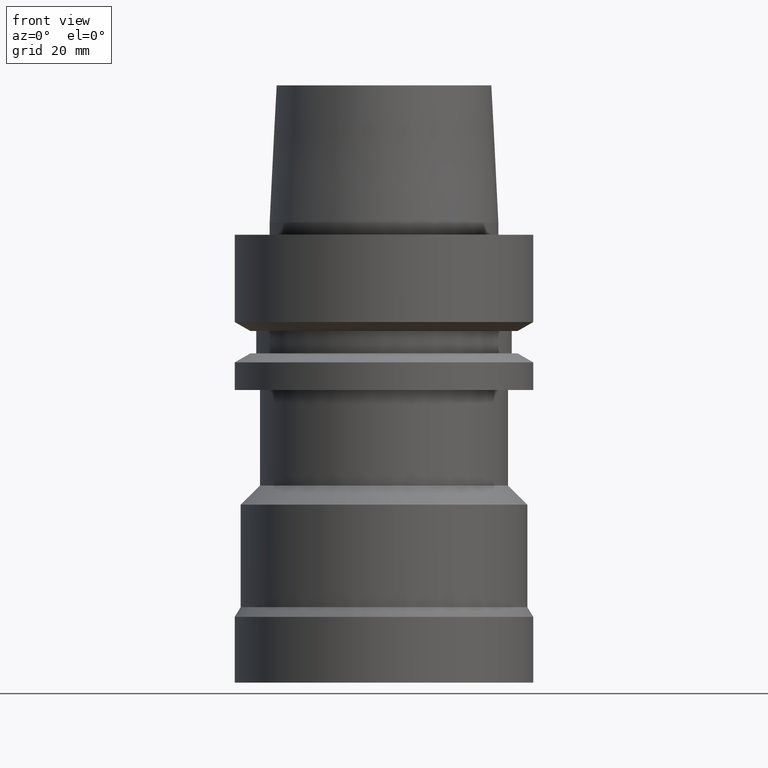
[diagram: clean part render]
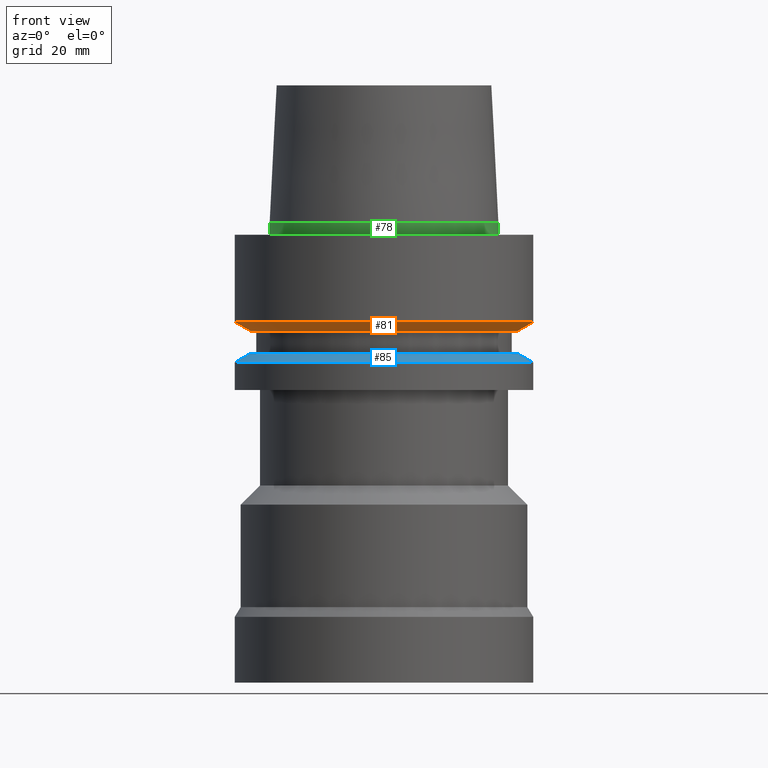
[diagram: same view with three faces highlighted in distinct colors, each labeled with its STEP entity id]
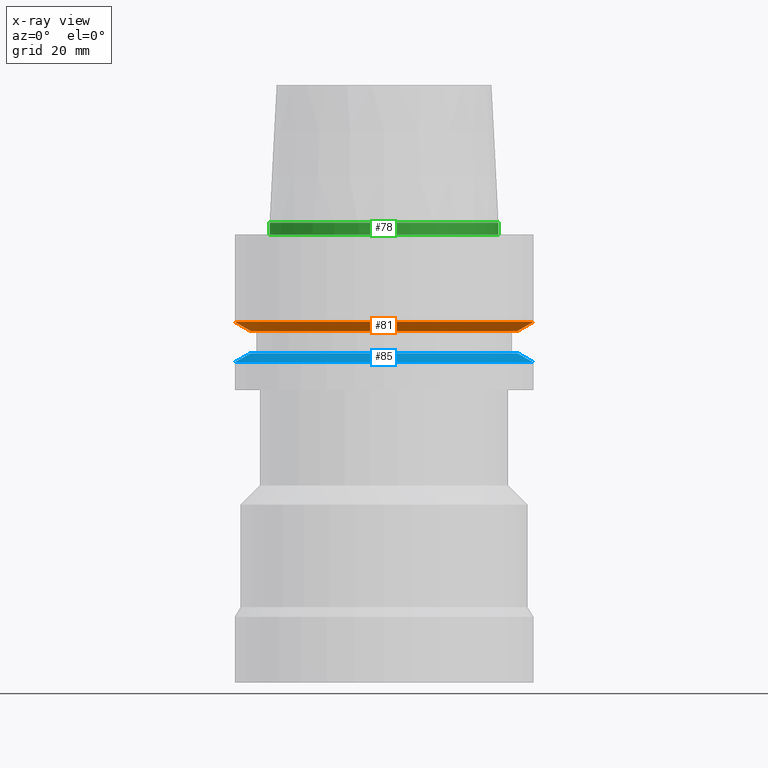
[diagram: x-ray of the same camera — body ghosted, the three highlighted faces saturated]
A machine part, front view with three faces highlighted in distinct colors.
The next image is the same camera in x-ray (body ghosted, the three faces saturated) — at least one of them is partly hidden behind the body in this view.
Their STEP definitions:

[orange] entity #81 — the highlighted conical surface has half-angle 60 deg.
#81=ADVANCED_FACE('',(#110,#111),#112,.T.);
#110=FACE_BOUND('',#162,.T.);
#111=FACE_BOUND('',#163,.T.);
#112=CONICAL_SURFACE('',#164,23.69879763,1.04719755326565);
#162=EDGE_LOOP('',(#226));
#163=EDGE_LOOP('',(#227));
#164=AXIS2_PLACEMENT_3D('',#228,#229,#230);
#226=ORIENTED_EDGE('',*,*,#292,.F.);
#227=ORIENTED_EDGE('',*,*,#291,.T.);
#228=CARTESIAN_POINT('',(9.41370714892619E-016,1.88274142978524E-015,-15.373750465));
#229=DIRECTION('',(-6.12323399573676E-017,-1.22464679914735E-016,1.0));
#230=DIRECTION('',(-1.23259516440783E-032,1.0,1.22464679914735E-016));
#291=EDGE_CURVE('',#313,#313,#314,.T.);
#292=EDGE_CURVE('',#315,#315,#316,.T.);
#313=VERTEX_POINT('',#347);
#314=CIRCLE('',#348,25.0);
#315=VERTEX_POINT('',#349);
#316=CIRCLE('',#350,22.39759526);
#347=CARTESIAN_POINT('',(8.95369947972684E-016,25.0,-14.62250093));
#348=AXIS2_PLACEMENT_3D('',#386,#387,#388);
#349=CARTESIAN_POINT('',(9.87371481812553E-016,22.39759526,-16.125));
#350=AXIS2_PLACEMENT_3D('',#389,#390,#391);
#386=CARTESIAN_POINT('',(8.95369947972685E-016,1.79073989594537E-015,-14.62250093));
#387=DIRECTION('',(6.12323399573677E-017,1.22464679914735E-016,-1.0));
#388=DIRECTION('',(-1.23259516440783E-032,1.0,1.22464679914735E-016));
#389=CARTESIAN_POINT('',(9.87371481812554E-016,1.97474296362511E-015,-16.125));
#390=DIRECTION('',(6.12323399573677E-017,1.22464679914735E-016,-1.0));
#391=DIRECTION('',(-1.23259516440783E-032,1.0,1.22464679914735E-016));

[blue] entity #85 — the highlighted conical surface has half-angle 60 deg.
#85=ADVANCED_FACE('',(#122,#123),#124,.T.);
#122=FACE_BOUND('',#174,.T.);
#123=FACE_BOUND('',#175,.T.);
#124=CONICAL_SURFACE('',#176,23.69879763,1.04719755326565);
#174=EDGE_LOOP('',(#246));
#175=EDGE_LOOP('',(#247));
#176=AXIS2_PLACEMENT_3D('',#248,#249,#250);
#246=ORIENTED_EDGE('',*,*,#296,.F.);
#247=ORIENTED_EDGE('',*,*,#295,.T.);
#248=CARTESIAN_POINT('',(1.26299352357262E-015,2.52598704714523E-015,-20.626249535));
#249=DIRECTION('',(6.12323399573676E-017,1.22464679914735E-016,-1.0));
#250=DIRECTION('',(-1.23259516440783E-032,1.0,1.22464679914735E-016));
#295=EDGE_CURVE('',#321,#321,#322,.T.);
#296=EDGE_CURVE('',#323,#323,#324,.T.);
#321=VERTEX_POINT('',#355);
#322=CIRCLE('',#356,22.39759526);
#323=VERTEX_POINT('',#357);
#324=CIRCLE('',#358,25.0);
#355=CARTESIAN_POINT('',(1.21699275665268E-015,22.39759526,-19.875));
#356=AXIS2_PLACEMENT_3D('',#398,#399,#400);
#357=CARTESIAN_POINT('',(1.30899429049255E-015,25.0,-21.37749907));
#358=AXIS2_PLACEMENT_3D('',#401,#402,#403);
#398=CARTESIAN_POINT('',(1.21699275665268E-015,2.43398551330536E-015,-19.875));
#399=DIRECTION('',(6.12323399573677E-017,1.22464679914735E-016,-1.0));
#400=DIRECTION('',(-1.23259516440783E-032,1.0,1.22464679914735E-016));
#401=CARTESIAN_POINT('',(1.30899429049255E-015,2.6179885809851E-015,-21.37749907));
#402=DIRECTION('',(6.12323399573677E-017,1.22464679914735E-016,-1.0));
#403=DIRECTION('',(-1.23259516440783E-032,1.0,1.22464679914735E-016));

[green] entity #78 — the highlighted cylindrical surface (bore or boss wall) has radius 19.15 mm, axis along (-0, -0, 1).
#78=ADVANCED_FACE('',(#101,#102),#103,.T.);
#101=FACE_BOUND('',#153,.T.);
#102=FACE_BOUND('',#154,.T.);
#103=CYLINDRICAL_SURFACE('',#155,19.15);
#153=EDGE_LOOP('',(#211));
#154=EDGE_LOOP('',(#212));
#155=AXIS2_PLACEMENT_3D('',#213,#214,#215);
#211=ORIENTED_EDGE('',*,*,#289,.F.);
#212=ORIENTED_EDGE('',*,*,#288,.T.);
#213=CARTESIAN_POINT('',(-6.12323399573677E-017,-1.22464679914735E-016,1.0));
#214=DIRECTION('',(-6.12323399573677E-017,-1.22464679914735E-016,1.0));
#215=DIRECTION('',(-1.23259516440783E-032,1.0,1.22464679914735E-016));
#288=EDGE_CURVE('',#307,#307,#308,.T.);
#289=EDGE_CURVE('',#309,#309,#310,.T.);
#307=VERTEX_POINT('',#341);
#308=CIRCLE('',#342,19.15);
#309=VERTEX_POINT('',#343);
#310=CIRCLE('',#344,19.15);
#341=CARTESIAN_POINT('',(-1.22464679914736E-016,19.15,2.0));
#342=AXIS2_PLACEMENT_3D('',#377,#378,#379);
#343=CARTESIAN_POINT('',(-2.360419739841E-031,19.15,2.34519862036718E-015));
#344=AXIS2_PLACEMENT_3D('',#380,#381,#382);
#377=CARTESIAN_POINT('',(-1.22464679914735E-016,-2.44929359829471E-016,2.0));
#378=DIRECTION('',(6.12323399573677E-017,1.22464679914735E-016,-1.0));
#379=DIRECTION('',(-1.23259516440783E-032,1.0,1.22464679914735E-016));
#380=CARTESIAN_POINT('',(0.0,0.0,0.0));
#381=DIRECTION('',(6.12323399573677E-017,1.22464679914735E-016,-1.0));
#382=DIRECTION('',(-1.23259516440783E-032,1.0,1.22464679914735E-016));